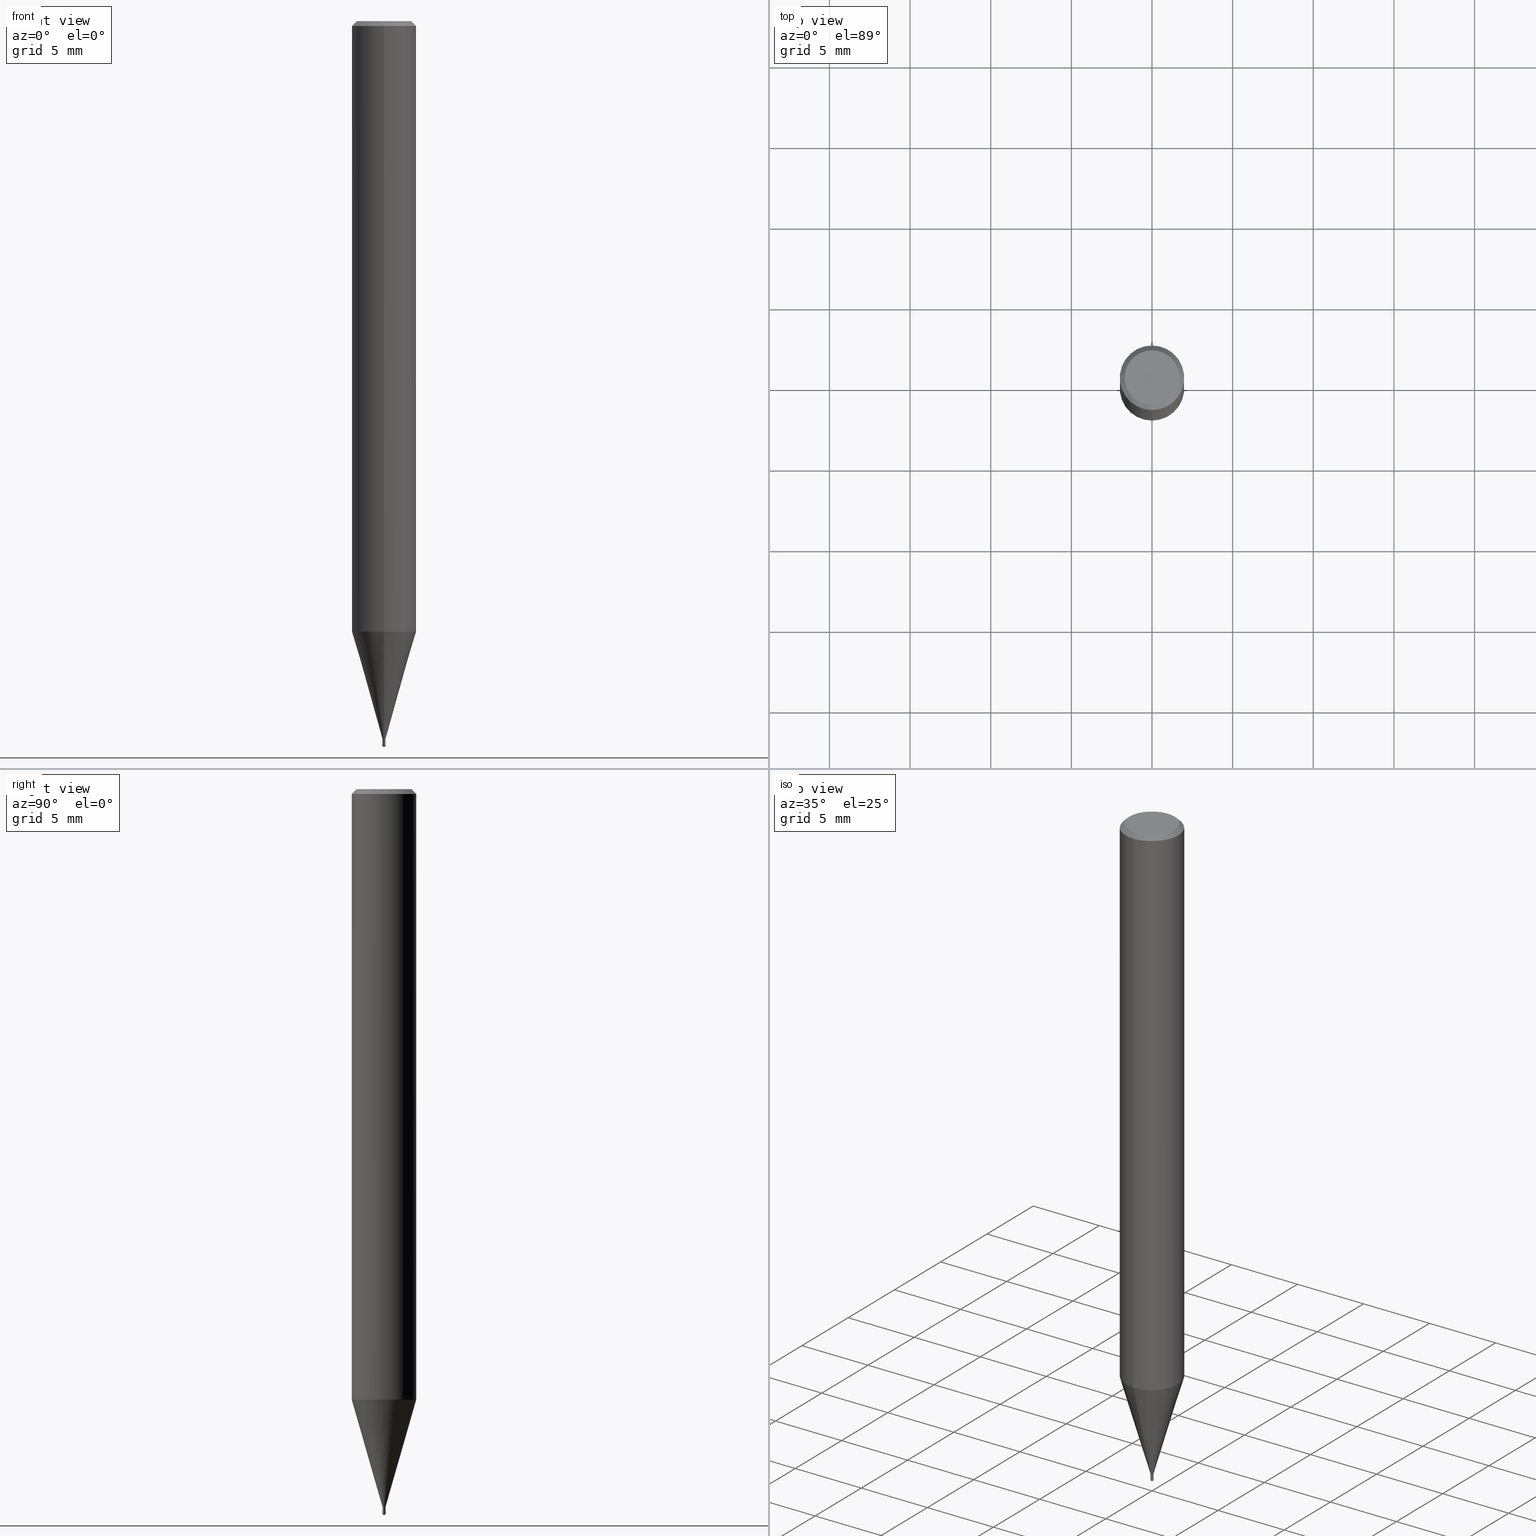
[diagram: canonical four-view strip — front | top / right | iso, engineering-drawing reading convention]
A machine part, canonical four-view strip (front | top / right | iso — engineering-drawing reading convention). The complete STEP part file that produces these views, byte-faithful:
ISO-10303-21;
HEADER;
FILE_DESCRIPTION(('no description'),'unknown implementation level');
FILE_NAME('HSLB2002-005-Huellk.stp','  ',('CIMSOURCE GmbH'),('CADClick - KiM GmbH - www.kimweb.de'),'unknown preprocess','ACIS','unknown authorization');
FILE_SCHEMA(('automotive_design'));
ENDSEC;
DATA;
#1=MECHANICAL_DESIGN_GEOMETRIC_PRESENTATION_REPRESENTATION(' ',(#14,#15,#16,#17,#18,#19,#20,#21,#22,#23,#24,#25,#26,#27,#28,#29,#30,#31,#32,#33,#34,#35,#36,#37,#38,#39,#40,#41,#42,#43,#44,#45,#46,#47,#48,#49,#50,#51,#52,#53,#54,#55,#56,#57,#58,#59,#60,#61,#62,#63,#64,#65,#66,#67,#68,#69,#70,#71,#72,#73,#74),#10);
#2=PRODUCT_DEFINITION_CONTEXT('',#75,'design');
#3=APPLICATION_PROTOCOL_DEFINITION('INTERNATIONAL STANDARD','automotive_design',1994,#75);
#4=PRODUCT_CATEGORY_RELATIONSHIP('NONE','NONE',#76,#77);
#5=SHAPE_DEFINITION_REPRESENTATION(#78,#79);
#6=PRODUCT_DEFINITION_CONTEXT('',#80,'design');
#7=APPLICATION_PROTOCOL_DEFINITION('INTERNATIONAL STANDARD','automotive_design',1994,#80);
#8=PRODUCT_CATEGORY_RELATIONSHIP('NONE','NONE',#81,#82);
#9=SHAPE_DEFINITION_REPRESENTATION(#83,#84);
#10= (GEOMETRIC_REPRESENTATION_CONTEXT(3)GLOBAL_UNCERTAINTY_ASSIGNED_CONTEXT((#87))GLOBAL_UNIT_ASSIGNED_CONTEXT((#89,#90,#91))REPRESENTATION_CONTEXT('NONE','WORKSPACE'));
#14=STYLED_ITEM('',(#93),#94);
#15=STYLED_ITEM('',(#95),#96);
#16=STYLED_ITEM('',(#97),#98);
#17=STYLED_ITEM('',(#99),#100);
#18=STYLED_ITEM('',(#101),#102);
#19=STYLED_ITEM('',(#103),#104);
#20=STYLED_ITEM('',(#105),#106);
#21=STYLED_ITEM('',(#107),#108);
#22=STYLED_ITEM('',(#109),#110);
#23=STYLED_ITEM('',(#111),#112);
#24=STYLED_ITEM('',(#113),#114);
#25=STYLED_ITEM('',(#115),#116);
#26=STYLED_ITEM('',(#117),#118);
#27=STYLED_ITEM('',(#119),#120);
#28=STYLED_ITEM('',(#121),#122);
#29=STYLED_ITEM('',(#123),#124);
#30=STYLED_ITEM('',(#125),#126);
#31=STYLED_ITEM('',(#127),#128);
#32=STYLED_ITEM('',(#129),#130);
#33=STYLED_ITEM('',(#131),#132);
#34=STYLED_ITEM('',(#133),#134);
#35=STYLED_ITEM('',(#135),#136);
#36=STYLED_ITEM('',(#137),#138);
#37=STYLED_ITEM('',(#139),#140);
#38=STYLED_ITEM('',(#141),#142);
#39=STYLED_ITEM('',(#143),#144);
#40=STYLED_ITEM('',(#145),#146);
#41=STYLED_ITEM('',(#147),#148);
#42=STYLED_ITEM('',(#149),#150);
#43=STYLED_ITEM('',(#151),#152);
#44=STYLED_ITEM('',(#153),#154);
#45=STYLED_ITEM('',(#155),#156);
#46=STYLED_ITEM('',(#157),#158);
#47=STYLED_ITEM('',(#159),#160);
#48=STYLED_ITEM('',(#161),#162);
#49=STYLED_ITEM('',(#163),#164);
#50=STYLED_ITEM('',(#165),#166);
#51=STYLED_ITEM('',(#167),#168);
#52=STYLED_ITEM('',(#169),#170);
#53=STYLED_ITEM('',(#171),#172);
#54=STYLED_ITEM('',(#173),#174);
#55=STYLED_ITEM('',(#175),#176);
#56=STYLED_ITEM('',(#177),#178);
#57=STYLED_ITEM('',(#179),#180);
#58=STYLED_ITEM('',(#181),#182);
#59=STYLED_ITEM('',(#183),#184);
#60=STYLED_ITEM('',(#185),#186);
#61=STYLED_ITEM('',(#187),#188);
#62=STYLED_ITEM('',(#189),#190);
#63=STYLED_ITEM('',(#191),#192);
#64=STYLED_ITEM('',(#193),#194);
#65=STYLED_ITEM('',(#195),#196);
#66=STYLED_ITEM('',(#197),#198);
#67=STYLED_ITEM('',(#199),#200);
#68=STYLED_ITEM('',(#201),#202);
#69=STYLED_ITEM('',(#203),#204);
#70=STYLED_ITEM('',(#205),#206);
#71=STYLED_ITEM('',(#207),#208);
#72=STYLED_ITEM('',(#209),#210);
#73=STYLED_ITEM('',(#211),#212);
#74=STYLED_ITEM('',(#213),#214);
#75=APPLICATION_CONTEXT(' ');
#76=PRODUCT_CATEGORY('part','NONE');
#77=PRODUCT_RELATED_PRODUCT_CATEGORY('detail',' ',(#215));
#78=PRODUCT_DEFINITION_SHAPE('NONE','NONE',#216);
#79=ADVANCED_BREP_SHAPE_REPRESENTATION('1',(#158,#217),#10);
#80=APPLICATION_CONTEXT(' ');
#81=PRODUCT_CATEGORY('part','NONE');
#82=PRODUCT_RELATED_PRODUCT_CATEGORY('detail',' ',(#218));
#83=PRODUCT_DEFINITION_SHAPE('NONE','NONE',#219);
#84=ADVANCED_BREP_SHAPE_REPRESENTATION('2',(#188,#220),#10);
#87=UNCERTAINTY_MEASURE_WITH_UNIT(LENGTH_MEASURE(1.0E-006),#89,'','');
#89= (CONVERSION_BASED_UNIT('MILLIMETRE',#223)LENGTH_UNIT()NAMED_UNIT(#226));
#90= (NAMED_UNIT(#228)PLANE_ANGLE_UNIT()SI_UNIT($,.RADIAN.));
#91= (NAMED_UNIT(#228)SOLID_ANGLE_UNIT()SI_UNIT($,.STERADIAN.));
#93=PRESENTATION_STYLE_ASSIGNMENT((#234));
#94=EDGE_CURVE('',#194,#124,#235,.T.);
#95=PRESENTATION_STYLE_ASSIGNMENT((#236));
#96=EDGE_CURVE('',#112,#194,#237,.T.);
#97=PRESENTATION_STYLE_ASSIGNMENT((#238));
#98=ADVANCED_FACE('',(#239),#240,.T.);
#99=PRESENTATION_STYLE_ASSIGNMENT((#241));
#100=ADVANCED_FACE('',(#242),#243,.T.);
#101=PRESENTATION_STYLE_ASSIGNMENT((#244));
#102=EDGE_CURVE('',#118,#160,#245,.T.);
#103=PRESENTATION_STYLE_ASSIGNMENT((#246));
#104=EDGE_CURVE('',#106,#142,#247,.T.);
#105=PRESENTATION_STYLE_ASSIGNMENT((#248));
#106=VERTEX_POINT('',#249);
#107=PRESENTATION_STYLE_ASSIGNMENT((#250));
#108=EDGE_CURVE('',#124,#166,#251,.T.);
#109=PRESENTATION_STYLE_ASSIGNMENT((#252));
#110=ADVANCED_FACE('',(#253),#254,.T.);
#111=PRESENTATION_STYLE_ASSIGNMENT((#255));
#112=VERTEX_POINT('',#256);
#113=PRESENTATION_STYLE_ASSIGNMENT((#257));
#114=VERTEX_POINT('',#258);
#115=PRESENTATION_STYLE_ASSIGNMENT((#259));
#116=EDGE_CURVE('',#160,#118,#260,.T.);
#117=PRESENTATION_STYLE_ASSIGNMENT((#261));
#118=VERTEX_POINT('',#262);
#119=PRESENTATION_STYLE_ASSIGNMENT((#263));
#120=ADVANCED_FACE('',(#264),#265,.T.);
#121=PRESENTATION_STYLE_ASSIGNMENT((#266));
#122=EDGE_CURVE('',#106,#160,#267,.T.);
#123=PRESENTATION_STYLE_ASSIGNMENT((#268));
#124=VERTEX_POINT('',#269);
#125=PRESENTATION_STYLE_ASSIGNMENT((#270));
#126=ADVANCED_FACE('',(#271),#272,.T.);
#127=PRESENTATION_STYLE_ASSIGNMENT((#273));
#128=EDGE_CURVE('',#118,#160,#274,.T.);
#129=PRESENTATION_STYLE_ASSIGNMENT((#275));
#130=ADVANCED_FACE('',(#276),#277,.T.);
#131=PRESENTATION_STYLE_ASSIGNMENT((#278));
#132=EDGE_CURVE('',#152,#112,#279,.T.);
#133=PRESENTATION_STYLE_ASSIGNMENT((#280));
#134=EDGE_CURVE('',#166,#214,#281,.T.);
#135=PRESENTATION_STYLE_ASSIGNMENT((#282));
#136=VERTEX_POINT('',#283);
#137=PRESENTATION_STYLE_ASSIGNMENT((#284));
#138=ADVANCED_FACE('',(#285),#286,.T.);
#139=PRESENTATION_STYLE_ASSIGNMENT((#287));
#140=ADVANCED_FACE('',(#288),#289,.T.);
#141=PRESENTATION_STYLE_ASSIGNMENT((#290));
#142=VERTEX_POINT('',#291);
#143=PRESENTATION_STYLE_ASSIGNMENT((#292));
#144=VERTEX_POINT('',#293);
#145=PRESENTATION_STYLE_ASSIGNMENT((#294));
#146=EDGE_CURVE('',#118,#142,#295,.T.);
#147=PRESENTATION_STYLE_ASSIGNMENT((#296));
#148=EDGE_CURVE('',#204,#168,#297,.T.);
#149=PRESENTATION_STYLE_ASSIGNMENT((#298));
#150=ADVANCED_FACE('',(#299),#300,.T.);
#151=PRESENTATION_STYLE_ASSIGNMENT((#301));
#152=VERTEX_POINT('',#302);
#153=PRESENTATION_STYLE_ASSIGNMENT((#303));
#154=EDGE_CURVE('',#136,#168,#304,.T.);
#155=PRESENTATION_STYLE_ASSIGNMENT((#305));
#156=VERTEX_POINT('',#306);
#157=PRESENTATION_STYLE_ASSIGNMENT((#307));
#158=MANIFOLD_SOLID_BREP('1',#308);
#159=PRESENTATION_STYLE_ASSIGNMENT((#309));
#160=VERTEX_POINT('',#310);
#161=PRESENTATION_STYLE_ASSIGNMENT((#311));
#162=EDGE_CURVE('',#112,#152,#312,.T.);
#163=PRESENTATION_STYLE_ASSIGNMENT((#313));
#164=EDGE_CURVE('',#168,#144,#314,.T.);
#165=PRESENTATION_STYLE_ASSIGNMENT((#315));
#166=VERTEX_POINT('',#316);
#167=PRESENTATION_STYLE_ASSIGNMENT((#317));
#168=VERTEX_POINT('',#318);
#169=PRESENTATION_STYLE_ASSIGNMENT((#319));
#170=EDGE_CURVE('',#136,#114,#320,.T.);
#171=PRESENTATION_STYLE_ASSIGNMENT((#321));
#172=EDGE_CURVE('',#144,#156,#322,.T.);
#173=PRESENTATION_STYLE_ASSIGNMENT((#323));
#174=EDGE_CURVE('',#194,#214,#324,.T.);
#175=PRESENTATION_STYLE_ASSIGNMENT((#325));
#176=ADVANCED_FACE('',(#326),#327,.T.);
#177=PRESENTATION_STYLE_ASSIGNMENT((#328));
#178=ADVANCED_FACE('',(#329),#330,.T.);
#179=PRESENTATION_STYLE_ASSIGNMENT((#331));
#180=ADVANCED_FACE('',(#332),#333,.T.);
#181=PRESENTATION_STYLE_ASSIGNMENT((#334));
#182=EDGE_CURVE('',#156,#144,#335,.T.);
#183=PRESENTATION_STYLE_ASSIGNMENT((#336));
#184=ADVANCED_FACE('',(#337),#338,.T.);
#185=PRESENTATION_STYLE_ASSIGNMENT((#339));
#186=EDGE_CURVE('',#142,#106,#340,.T.);
#187=PRESENTATION_STYLE_ASSIGNMENT((#341));
#188=MANIFOLD_SOLID_BREP('2',#342);
#189=PRESENTATION_STYLE_ASSIGNMENT((#343));
#190=EDGE_CURVE('',#214,#152,#344,.T.);
#191=PRESENTATION_STYLE_ASSIGNMENT((#345));
#192=ADVANCED_FACE('',(#346),#347,.T.);
#193=PRESENTATION_STYLE_ASSIGNMENT((#348));
#194=VERTEX_POINT('',#349);
#195=PRESENTATION_STYLE_ASSIGNMENT((#350));
#196=EDGE_CURVE('',#114,#204,#351,.T.);
#197=PRESENTATION_STYLE_ASSIGNMENT((#352));
#198=EDGE_CURVE('',#204,#114,#353,.T.);
#199=PRESENTATION_STYLE_ASSIGNMENT((#354));
#200=ADVANCED_FACE('',(#355),#356,.T.);
#201=PRESENTATION_STYLE_ASSIGNMENT((#357));
#202=EDGE_CURVE('',#168,#136,#358,.T.);
#203=PRESENTATION_STYLE_ASSIGNMENT((#359));
#204=VERTEX_POINT('',#360);
#205=PRESENTATION_STYLE_ASSIGNMENT((#361));
#206=EDGE_CURVE('',#156,#136,#362,.T.);
#207=PRESENTATION_STYLE_ASSIGNMENT((#363));
#208=ADVANCED_FACE('',(#364,#365),#366,.T.);
#209=PRESENTATION_STYLE_ASSIGNMENT((#367));
#210=EDGE_CURVE('',#166,#124,#368,.T.);
#211=PRESENTATION_STYLE_ASSIGNMENT((#369));
#212=EDGE_CURVE('',#214,#194,#370,.T.);
#213=PRESENTATION_STYLE_ASSIGNMENT((#371));
#214=VERTEX_POINT('',#372);
#215=PRODUCT('1','1','PART-1-DESC',(#373));
#216=PRODUCT_DEFINITION('NONE','NONE',#374,#2);
#217=AXIS2_PLACEMENT_3D('',#375,#376,#377);
#218=PRODUCT('2','2','PART-2-DESC',(#378));
#219=PRODUCT_DEFINITION('NONE','NONE',#379,#6);
#220=AXIS2_PLACEMENT_3D('',#380,#381,#382);
#223=LENGTH_MEASURE_WITH_UNIT(LENGTH_MEASURE(1.0),#383);
#226=DIMENSIONAL_EXPONENTS(1.0,0.0,0.0,0.0,0.0,0.0,0.0);
#228=DIMENSIONAL_EXPONENTS(0.0,0.0,0.0,0.0,0.0,0.0,0.0);
#234=CURVE_STYLE('',#384,POSITIVE_LENGTH_MEASURE(1.0E-006),#385);
#235=LINE('',#386,#387);
#236=CURVE_STYLE('',#388,POSITIVE_LENGTH_MEASURE(1.0E-006),#389);
#237=LINE('',#390,#391);
#238=SURFACE_STYLE_USAGE(.BOTH.,#392);
#239=FACE_OUTER_BOUND('',#393,.T.);
#240=CONICAL_SURFACE('',#394,0.09995,0.00166666512345941);
#241=SURFACE_STYLE_USAGE(.BOTH.,#395);
#242=FACE_OUTER_BOUND('',#396,.T.);
#243=PLANE('',#397);
#244=CURVE_STYLE('',#398,POSITIVE_LENGTH_MEASURE(1.0E-006),#399);
#245=CIRCLE('',#400,0.1);
#246=CURVE_STYLE('',#401,POSITIVE_LENGTH_MEASURE(1.0E-006),#402);
#247=CIRCLE('',#403,0.0999);
#248=POINT_STYLE(' ',#404,POSITIVE_LENGTH_MEASURE(1.0E-006),#405);
#249=CARTESIAN_POINT('',(0.0,0.0999,-44.84));
#250=CURVE_STYLE('',#406,POSITIVE_LENGTH_MEASURE(1.0E-006),#407);
#251=CIRCLE('',#408,1.99995);
#252=SURFACE_STYLE_USAGE(.BOTH.,#409);
#253=FACE_OUTER_BOUND('',#410,.T.);
#254=CYLINDRICAL_SURFACE('',#411,0.09495);
#255=POINT_STYLE(' ',#412,POSITIVE_LENGTH_MEASURE(1.0E-006),#413);
#256=CARTESIAN_POINT('',(1.16276373295435E-017,-0.09495,-44.84));
#257=POINT_STYLE(' ',#414,POSITIVE_LENGTH_MEASURE(1.0E-006),#415);
#258=CARTESIAN_POINT('',(0.0,2.0,-37.856));
#259=CURVE_STYLE('',#416,POSITIVE_LENGTH_MEASURE(1.0E-006),#417);
#260=CIRCLE('',#418,0.1);
#261=POINT_STYLE(' ',#419,POSITIVE_LENGTH_MEASURE(1.0E-006),#420);
#262=CARTESIAN_POINT('',(1.22460635382238E-017,-0.1,-44.9));
#263=SURFACE_STYLE_USAGE(.BOTH.,#421);
#264=FACE_OUTER_BOUND('',#422,.T.);
#265=SPHERICAL_SURFACE('',#423,0.1);
#266=CURVE_STYLE('',#424,POSITIVE_LENGTH_MEASURE(1.0E-006),#425);
#267=LINE('',#426,#427);
#268=POINT_STYLE(' ',#428,POSITIVE_LENGTH_MEASURE(1.0E-006),#429);
#269=CARTESIAN_POINT('',(2.44915147732706E-016,-1.99995,-37.856));
#270=SURFACE_STYLE_USAGE(.BOTH.,#430);
#271=FACE_OUTER_BOUND('',#431,.T.);
#272=PLANE('',#432);
#273=CURVE_STYLE('',#433,POSITIVE_LENGTH_MEASURE(1.0E-006),#434);
#274=CIRCLE('',#435,0.1);
#275=SURFACE_STYLE_USAGE(.BOTH.,#436);
#276=FACE_OUTER_BOUND('',#437,.T.);
#277=CYLINDRICAL_SURFACE('',#438,0.09495);
#278=CURVE_STYLE('',#439,POSITIVE_LENGTH_MEASURE(1.0E-006),#440);
#279=CIRCLE('',#441,0.09495);
#280=CURVE_STYLE('',#442,POSITIVE_LENGTH_MEASURE(1.0E-006),#443);
#281=LINE('',#444,#445);
#282=POINT_STYLE(' ',#446,POSITIVE_LENGTH_MEASURE(1.0E-006),#447);
#283=CARTESIAN_POINT('',(0.0,2.0,-0.299999999999997));
#284=SURFACE_STYLE_USAGE(.BOTH.,#448);
#285=FACE_OUTER_BOUND('',#449,.T.);
#286=CONICAL_SURFACE('',#450,0.09995,0.00166666512345941);
#287=SURFACE_STYLE_USAGE(.BOTH.,#451);
#288=FACE_OUTER_BOUND('',#452,.T.);
#289=CONICAL_SURFACE('',#453,1.04745,0.279233718115795);
#290=POINT_STYLE(' ',#454,POSITIVE_LENGTH_MEASURE(1.0E-006),#455);
#291=CARTESIAN_POINT('',(1.22338174746855E-017,-0.0999,-44.84));
#292=POINT_STYLE(' ',#456,POSITIVE_LENGTH_MEASURE(1.0E-006),#457);
#293=CARTESIAN_POINT('',(2.08183080149804E-016,-1.7,0.0));
#294=CURVE_STYLE('',#458,POSITIVE_LENGTH_MEASURE(1.0E-006),#459);
#295=LINE('',#460,#461);
#296=CURVE_STYLE('',#462,POSITIVE_LENGTH_MEASURE(1.0E-006),#463);
#297=LINE('',#464,#465);
#298=SURFACE_STYLE_USAGE(.BOTH.,#466);
#299=FACE_OUTER_BOUND('',#467,.T.);
#300=CYLINDRICAL_SURFACE('',#468,2.0);
#301=POINT_STYLE(' ',#469,POSITIVE_LENGTH_MEASURE(1.0E-006),#470);
#302=CARTESIAN_POINT('',(0.0,0.09495,-44.84));
#303=CURVE_STYLE('',#471,POSITIVE_LENGTH_MEASURE(1.0E-006),#472);
#304=CIRCLE('',#473,2.0);
#305=POINT_STYLE(' ',#474,POSITIVE_LENGTH_MEASURE(1.0E-006),#475);
#306=CARTESIAN_POINT('',(0.0,1.7,0.0));
#307=SURFACE_STYLE_USAGE(.BOTH.,#476);
#308=CLOSED_SHELL('',(#110,#140,#180,#200,#208,#126,#176,#150,#178,#130,#192));
#309=POINT_STYLE(' ',#477,POSITIVE_LENGTH_MEASURE(1.0E-006),#478);
#310=CARTESIAN_POINT('',(0.0,0.1,-44.9));
#311=CURVE_STYLE('',#479,POSITIVE_LENGTH_MEASURE(1.0E-006),#480);
#312=CIRCLE('',#481,0.09495);
#313=CURVE_STYLE('',#482,POSITIVE_LENGTH_MEASURE(1.0E-006),#483);
#314=LINE('',#484,#485);
#315=POINT_STYLE(' ',#486,POSITIVE_LENGTH_MEASURE(1.0E-006),#487);
#316=CARTESIAN_POINT('',(0.0,1.99995,-37.856));
#317=POINT_STYLE(' ',#488,POSITIVE_LENGTH_MEASURE(1.0E-006),#489);
#318=CARTESIAN_POINT('',(2.44921270764475E-016,-2.0,-0.299999999999997));
#319=CURVE_STYLE('',#490,POSITIVE_LENGTH_MEASURE(1.0E-006),#491);
#320=LINE('',#492,#493);
#321=CURVE_STYLE('',#494,POSITIVE_LENGTH_MEASURE(1.0E-006),#495);
#322=CIRCLE('',#496,1.7);
#323=CURVE_STYLE('',#497,POSITIVE_LENGTH_MEASURE(1.0E-006),#498);
#324=CIRCLE('',#499,0.09495);
#325=SURFACE_STYLE_USAGE(.BOTH.,#500);
#326=FACE_OUTER_BOUND('',#501,.T.);
#327=CONICAL_SURFACE('',#502,1.85,0.785398163397453);
#328=SURFACE_STYLE_USAGE(.BOTH.,#503);
#329=FACE_OUTER_BOUND('',#504,.T.);
#330=CONICAL_SURFACE('',#505,1.04745,0.279233718115795);
#331=SURFACE_STYLE_USAGE(.BOTH.,#506);
#332=FACE_OUTER_BOUND('',#507,.T.);
#333=CYLINDRICAL_SURFACE('',#508,2.0);
#334=CURVE_STYLE('',#509,POSITIVE_LENGTH_MEASURE(1.0E-006),#510);
#335=CIRCLE('',#511,1.7);
#336=SURFACE_STYLE_USAGE(.BOTH.,#512);
#337=FACE_OUTER_BOUND('',#513,.T.);
#338=SPHERICAL_SURFACE('',#514,0.1);
#339=CURVE_STYLE('',#515,POSITIVE_LENGTH_MEASURE(1.0E-006),#516);
#340=CIRCLE('',#517,0.0999);
#341=SURFACE_STYLE_USAGE(.BOTH.,#518);
#342=CLOSED_SHELL('',(#120,#98,#100,#138,#184));
#343=CURVE_STYLE('',#519,POSITIVE_LENGTH_MEASURE(1.0E-006),#520);
#344=LINE('',#521,#522);
#345=SURFACE_STYLE_USAGE(.BOTH.,#523);
#346=FACE_OUTER_BOUND('',#524,.T.);
#347=PLANE('',#525);
#348=POINT_STYLE(' ',#526,POSITIVE_LENGTH_MEASURE(1.0E-006),#527);
#349=CARTESIAN_POINT('',(1.16276373295435E-017,-0.09495,-44.5));
#350=CURVE_STYLE('',#528,POSITIVE_LENGTH_MEASURE(1.0E-006),#529);
#351=CIRCLE('',#530,2.0);
#352=CURVE_STYLE('',#531,POSITIVE_LENGTH_MEASURE(1.0E-006),#532);
#353=CIRCLE('',#533,2.0);
#354=SURFACE_STYLE_USAGE(.BOTH.,#534);
#355=FACE_OUTER_BOUND('',#535,.T.);
#356=CONICAL_SURFACE('',#536,1.85,0.785398163397453);
#357=CURVE_STYLE('',#537,POSITIVE_LENGTH_MEASURE(1.0E-006),#538);
#358=CIRCLE('',#539,2.0);
#359=POINT_STYLE(' ',#540,POSITIVE_LENGTH_MEASURE(1.0E-006),#541);
#360=CARTESIAN_POINT('',(2.44921270764475E-016,-2.0,-37.856));
#361=CURVE_STYLE('',#542,POSITIVE_LENGTH_MEASURE(1.0E-006),#543);
#362=LINE('',#544,#545);
#363=SURFACE_STYLE_USAGE(.BOTH.,#546);
#364=FACE_OUTER_BOUND('',#547,.T.);
#365=FACE_BOUND('',#548,.T.);
#366=PLANE('',#549);
#367=CURVE_STYLE('',#550,POSITIVE_LENGTH_MEASURE(1.0E-006),#551);
#368=CIRCLE('',#552,1.99995);
#369=CURVE_STYLE('',#553,POSITIVE_LENGTH_MEASURE(1.0E-006),#554);
#370=CIRCLE('',#555,0.09495);
#371=POINT_STYLE(' ',#556,POSITIVE_LENGTH_MEASURE(1.0E-006),#557);
#372=CARTESIAN_POINT('',(0.0,0.09495,-44.5));
#373=PRODUCT_CONTEXT('',#75,'mechanical');
#374=PRODUCT_DEFINITION_FORMATION_WITH_SPECIFIED_SOURCE(' ','NONE',#215,.NOT_KNOWN.);
#375=CARTESIAN_POINT('',(0.0,0.0,0.0));
#376=DIRECTION('',(0.0,0.0,1.0));
#377=DIRECTION('',(1.0,0.0,0.0));
#378=PRODUCT_CONTEXT('',#80,'mechanical');
#379=PRODUCT_DEFINITION_FORMATION_WITH_SPECIFIED_SOURCE(' ','NONE',#218,.NOT_KNOWN.);
#380=CARTESIAN_POINT('',(0.0,0.0,0.0));
#381=DIRECTION('',(0.0,0.0,1.0));
#382=DIRECTION('',(1.0,0.0,0.0));
#383= (NAMED_UNIT(#226)LENGTH_UNIT()SI_UNIT(.MILLI.,.METRE.));
#384=DRAUGHTING_PRE_DEFINED_CURVE_FONT('continuous');
#385=COLOUR_RGB('',0.498039215803146,0.498039215803146,0.498039215803146);
#386=CARTESIAN_POINT('',(1.28271392531125E-016,-1.04745,-41.178));
#387=VECTOR('',#559,1.0);
#388=DRAUGHTING_PRE_DEFINED_CURVE_FONT('continuous');
#389=COLOUR_RGB('',0.498039215803146,0.498039215803146,0.498039215803146);
#390=CARTESIAN_POINT('',(1.16276373295435E-017,-0.09495,-44.67));
#391=VECTOR('',#560,1.0);
#392=SURFACE_SIDE_STYLE('',(#561));
#393=EDGE_LOOP('',(#562,#563,#564,#565));
#394=AXIS2_PLACEMENT_3D('',#566,#567,#568);
#395=SURFACE_SIDE_STYLE('',(#569));
#396=EDGE_LOOP('',(#570,#571));
#397=AXIS2_PLACEMENT_3D('',#572,#573,#574);
#398=DRAUGHTING_PRE_DEFINED_CURVE_FONT('continuous');
#399=COLOUR_RGB('',0.800000011920929,0.800000011920929,0.800000011920929);
#400=AXIS2_PLACEMENT_3D('',#575,#576,#577);
#401=DRAUGHTING_PRE_DEFINED_CURVE_FONT('continuous');
#402=COLOUR_RGB('',0.800000011920929,0.800000011920929,0.800000011920929);
#403=AXIS2_PLACEMENT_3D('',#578,#579,#580);
#404=PRE_DEFINED_MARKER('');
#405=COLOUR_RGB('',0.800000011920929,0.800000011920929,0.800000011920929);
#406=DRAUGHTING_PRE_DEFINED_CURVE_FONT('continuous');
#407=COLOUR_RGB('',0.498039215803146,0.498039215803146,0.498039215803146);
#408=AXIS2_PLACEMENT_3D('',#581,#582,#583);
#409=SURFACE_SIDE_STYLE('',(#584));
#410=EDGE_LOOP('',(#585,#586,#587,#588));
#411=AXIS2_PLACEMENT_3D('',#589,#590,#591);
#412=PRE_DEFINED_MARKER('');
#413=COLOUR_RGB('',0.498039215803146,0.498039215803146,0.498039215803146);
#414=PRE_DEFINED_MARKER('');
#415=COLOUR_RGB('',0.498039215803146,0.498039215803146,0.498039215803146);
#416=DRAUGHTING_PRE_DEFINED_CURVE_FONT('continuous');
#417=COLOUR_RGB('',0.800000011920929,0.800000011920929,0.800000011920929);
#418=AXIS2_PLACEMENT_3D('',#592,#593,#594);
#419=PRE_DEFINED_MARKER('');
#420=COLOUR_RGB('',0.800000011920929,0.800000011920929,0.800000011920929);
#421=SURFACE_SIDE_STYLE('',(#595));
#422=EDGE_LOOP('',(#596,#597));
#423=AXIS2_PLACEMENT_3D('',#598,#599,#600);
#424=DRAUGHTING_PRE_DEFINED_CURVE_FONT('continuous');
#425=COLOUR_RGB('',0.800000011920929,0.800000011920929,0.800000011920929);
#426=CARTESIAN_POINT('',(-1.22399405064547E-017,0.09995,-44.87));
#427=VECTOR('',#601,1.0);
#428=PRE_DEFINED_MARKER('');
#429=COLOUR_RGB('',0.498039215803146,0.498039215803146,0.498039215803146);
#430=SURFACE_SIDE_STYLE('',(#602));
#431=EDGE_LOOP('',(#603,#604));
#432=AXIS2_PLACEMENT_3D('',#605,#606,#607);
#433=DRAUGHTING_PRE_DEFINED_CURVE_FONT('continuous');
#434=COLOUR_RGB('',0.800000011920929,0.800000011920929,0.800000011920929);
#435=AXIS2_PLACEMENT_3D('',#608,#609,#610);
#436=SURFACE_SIDE_STYLE('',(#611));
#437=EDGE_LOOP('',(#612,#613,#614,#615));
#438=AXIS2_PLACEMENT_3D('',#616,#617,#618);
#439=DRAUGHTING_PRE_DEFINED_CURVE_FONT('continuous');
#440=COLOUR_RGB('',0.498039215803146,0.498039215803146,0.498039215803146);
#441=AXIS2_PLACEMENT_3D('',#619,#620,#621);
#442=DRAUGHTING_PRE_DEFINED_CURVE_FONT('continuous');
#443=COLOUR_RGB('',0.498039215803146,0.498039215803146,0.498039215803146);
#444=CARTESIAN_POINT('',(-1.28271392531125E-016,1.04745,-41.178));
#445=VECTOR('',#622,1.0);
#446=PRE_DEFINED_MARKER('');
#447=COLOUR_RGB('',0.498039215803146,0.498039215803146,0.498039215803146);
#448=SURFACE_SIDE_STYLE('',(#623));
#449=EDGE_LOOP('',(#624,#625,#626,#627));
#450=AXIS2_PLACEMENT_3D('',#628,#629,#630);
#451=SURFACE_SIDE_STYLE('',(#631));
#452=EDGE_LOOP('',(#632,#633,#634,#635));
#453=AXIS2_PLACEMENT_3D('',#636,#637,#638);
#454=PRE_DEFINED_MARKER('');
#455=COLOUR_RGB('',0.800000011920929,0.800000011920929,0.800000011920929);
#456=PRE_DEFINED_MARKER('');
#457=COLOUR_RGB('',0.498039215803146,0.498039215803146,0.498039215803146);
#458=DRAUGHTING_PRE_DEFINED_CURVE_FONT('continuous');
#459=COLOUR_RGB('',0.800000011920929,0.800000011920929,0.800000011920929);
#460=CARTESIAN_POINT('',(1.22399405064547E-017,-0.09995,-44.87));
#461=VECTOR('',#639,1.0);
#462=DRAUGHTING_PRE_DEFINED_CURVE_FONT('continuous');
#463=COLOUR_RGB('',0.498039215803146,0.498039215803146,0.498039215803146);
#464=CARTESIAN_POINT('',(2.44921270764475E-016,-2.0,-19.078));
#465=VECTOR('',#640,1.0);
#466=SURFACE_SIDE_STYLE('',(#641));
#467=EDGE_LOOP('',(#642,#643,#644,#645));
#468=AXIS2_PLACEMENT_3D('',#646,#647,#648);
#469=PRE_DEFINED_MARKER('');
#470=COLOUR_RGB('',0.498039215803146,0.498039215803146,0.498039215803146);
#471=DRAUGHTING_PRE_DEFINED_CURVE_FONT('continuous');
#472=COLOUR_RGB('',0.498039215803146,0.498039215803146,0.498039215803146);
#473=AXIS2_PLACEMENT_3D('',#649,#650,#651);
#474=PRE_DEFINED_MARKER('');
#475=COLOUR_RGB('',0.498039215803146,0.498039215803146,0.498039215803146);
#476=SURFACE_SIDE_STYLE('',(#652));
#477=PRE_DEFINED_MARKER('');
#478=COLOUR_RGB('',0.800000011920929,0.800000011920929,0.800000011920929);
#479=DRAUGHTING_PRE_DEFINED_CURVE_FONT('continuous');
#480=COLOUR_RGB('',0.498039215803146,0.498039215803146,0.498039215803146);
#481=AXIS2_PLACEMENT_3D('',#653,#654,#655);
#482=DRAUGHTING_PRE_DEFINED_CURVE_FONT('continuous');
#483=COLOUR_RGB('',0.498039215803146,0.498039215803146,0.498039215803146);
#484=CARTESIAN_POINT('',(2.2655217545714E-016,-1.85,-0.149999999999999));
#485=VECTOR('',#656,1.0);
#486=PRE_DEFINED_MARKER('');
#487=COLOUR_RGB('',0.498039215803146,0.498039215803146,0.498039215803146);
#488=PRE_DEFINED_MARKER('');
#489=COLOUR_RGB('',0.498039215803146,0.498039215803146,0.498039215803146);
#490=DRAUGHTING_PRE_DEFINED_CURVE_FONT('continuous');
#491=COLOUR_RGB('',0.498039215803146,0.498039215803146,0.498039215803146);
#492=CARTESIAN_POINT('',(-2.44921270764475E-016,2.0,-19.078));
#493=VECTOR('',#657,1.0);
#494=DRAUGHTING_PRE_DEFINED_CURVE_FONT('continuous');
#495=COLOUR_RGB('',0.498039215803146,0.498039215803146,0.498039215803146);
#496=AXIS2_PLACEMENT_3D('',#658,#659,#660);
#497=DRAUGHTING_PRE_DEFINED_CURVE_FONT('continuous');
#498=COLOUR_RGB('',0.498039215803146,0.498039215803146,0.498039215803146);
#499=AXIS2_PLACEMENT_3D('',#661,#662,#663);
#500=SURFACE_SIDE_STYLE('',(#664));
#501=EDGE_LOOP('',(#665,#666,#667,#668));
#502=AXIS2_PLACEMENT_3D('',#669,#670,#671);
#503=SURFACE_SIDE_STYLE('',(#672));
#504=EDGE_LOOP('',(#673,#674,#675,#676));
#505=AXIS2_PLACEMENT_3D('',#677,#678,#679);
#506=SURFACE_SIDE_STYLE('',(#680));
#507=EDGE_LOOP('',(#681,#682,#683,#684));
#508=AXIS2_PLACEMENT_3D('',#685,#686,#687);
#509=DRAUGHTING_PRE_DEFINED_CURVE_FONT('continuous');
#510=COLOUR_RGB('',0.498039215803146,0.498039215803146,0.498039215803146);
#511=AXIS2_PLACEMENT_3D('',#688,#689,#690);
#512=SURFACE_SIDE_STYLE('',(#691));
#513=EDGE_LOOP('',(#692,#693));
#514=AXIS2_PLACEMENT_3D('',#694,#695,#696);
#515=DRAUGHTING_PRE_DEFINED_CURVE_FONT('continuous');
#516=COLOUR_RGB('',0.800000011920929,0.800000011920929,0.800000011920929);
#517=AXIS2_PLACEMENT_3D('',#697,#698,#699);
#518=SURFACE_SIDE_STYLE('',(#700));
#519=DRAUGHTING_PRE_DEFINED_CURVE_FONT('continuous');
#520=COLOUR_RGB('',0.498039215803146,0.498039215803146,0.498039215803146);
#521=CARTESIAN_POINT('',(-1.16276373295435E-017,0.09495,-44.67));
#522=VECTOR('',#701,1.0);
#523=SURFACE_SIDE_STYLE('',(#702));
#524=EDGE_LOOP('',(#703,#704));
#525=AXIS2_PLACEMENT_3D('',#705,#706,#707);
#526=PRE_DEFINED_MARKER('');
#527=COLOUR_RGB('',0.498039215803146,0.498039215803146,0.498039215803146);
#528=DRAUGHTING_PRE_DEFINED_CURVE_FONT('continuous');
#529=COLOUR_RGB('',0.498039215803146,0.498039215803146,0.498039215803146);
#530=AXIS2_PLACEMENT_3D('',#708,#709,#710);
#531=DRAUGHTING_PRE_DEFINED_CURVE_FONT('continuous');
#532=COLOUR_RGB('',0.498039215803146,0.498039215803146,0.498039215803146);
#533=AXIS2_PLACEMENT_3D('',#711,#712,#713);
#534=SURFACE_SIDE_STYLE('',(#714));
#535=EDGE_LOOP('',(#715,#716,#717,#718));
#536=AXIS2_PLACEMENT_3D('',#719,#720,#721);
#537=DRAUGHTING_PRE_DEFINED_CURVE_FONT('continuous');
#538=COLOUR_RGB('',0.498039215803146,0.498039215803146,0.498039215803146);
#539=AXIS2_PLACEMENT_3D('',#722,#723,#724);
#540=PRE_DEFINED_MARKER('');
#541=COLOUR_RGB('',0.498039215803146,0.498039215803146,0.498039215803146);
#542=DRAUGHTING_PRE_DEFINED_CURVE_FONT('continuous');
#543=COLOUR_RGB('',0.498039215803146,0.498039215803146,0.498039215803146);
#544=CARTESIAN_POINT('',(-2.2655217545714E-016,1.85,-0.149999999999999));
#545=VECTOR('',#725,1.0);
#546=SURFACE_SIDE_STYLE('',(#726));
#547=EDGE_LOOP('',(#727,#728));
#548=EDGE_LOOP('',(#729,#730));
#549=AXIS2_PLACEMENT_3D('',#731,#732,#733);
#550=DRAUGHTING_PRE_DEFINED_CURVE_FONT('continuous');
#551=COLOUR_RGB('',0.498039215803146,0.498039215803146,0.498039215803146);
#552=AXIS2_PLACEMENT_3D('',#734,#735,#736);
#553=DRAUGHTING_PRE_DEFINED_CURVE_FONT('continuous');
#554=COLOUR_RGB('',0.498039215803146,0.498039215803146,0.498039215803146);
#555=AXIS2_PLACEMENT_3D('',#737,#738,#739);
#556=PRE_DEFINED_MARKER('');
#557=COLOUR_RGB('',0.498039215803146,0.498039215803146,0.498039215803146);
#559=DIRECTION('',(3.37524935540219E-017,-0.275619128127744,0.961266922457078));
#560=DIRECTION('',(-0.0,-0.0,1.0));
#561=SURFACE_STYLE_FILL_AREA(#740);
#562=ORIENTED_EDGE('',*,*,#122,.F.);
#563=ORIENTED_EDGE('',*,*,#104,.T.);
#564=ORIENTED_EDGE('',*,*,#146,.F.);
#565=ORIENTED_EDGE('',*,*,#116,.F.);
#566=CARTESIAN_POINT('',(0.0,0.0,-44.87));
#567=DIRECTION('',(0.0,-0.0,-1.0));
#568=DIRECTION('',(0.0,1.0,0.0));
#569=SURFACE_STYLE_FILL_AREA(#741);
#570=ORIENTED_EDGE('',*,*,#104,.F.);
#571=ORIENTED_EDGE('',*,*,#186,.F.);
#572=CARTESIAN_POINT('',(0.0,0.04995,-44.84));
#573=DIRECTION('',(-0.0,0.0,1.0));
#574=DIRECTION('',(0.0,-1.0,0.0));
#575=CARTESIAN_POINT('',(0.0,0.0,-44.9));
#576=DIRECTION('',(1.0,0.0,1.22460635382236E-016));
#577=DIRECTION('',(-1.22460635382236E-016,0.0,1.0));
#578=CARTESIAN_POINT('',(0.0,0.0,-44.84));
#579=DIRECTION('',(0.0,0.0,-1.0));
#580=DIRECTION('',(0.0,1.0,0.0));
#581=CARTESIAN_POINT('',(0.0,0.0,-37.856));
#582=DIRECTION('',(0.0,0.0,-1.0));
#583=DIRECTION('',(0.0,1.0,0.0));
#584=SURFACE_STYLE_FILL_AREA(#742);
#585=ORIENTED_EDGE('',*,*,#190,.F.);
#586=ORIENTED_EDGE('',*,*,#212,.T.);
#587=ORIENTED_EDGE('',*,*,#96,.F.);
#588=ORIENTED_EDGE('',*,*,#132,.F.);
#589=CARTESIAN_POINT('',(0.0,0.0,-44.67));
#590=DIRECTION('',(-0.0,-0.0,1.0));
#591=DIRECTION('',(0.0,1.0,0.0));
#592=CARTESIAN_POINT('',(0.0,0.0,-44.9));
#593=DIRECTION('',(0.0,0.0,-1.0));
#594=DIRECTION('',(0.0,1.0,0.0));
#595=SURFACE_STYLE_FILL_AREA(#743);
#596=ORIENTED_EDGE('',*,*,#102,.F.);
#597=ORIENTED_EDGE('',*,*,#128,.T.);
#598=CARTESIAN_POINT('',(0.0,0.0,-44.9));
#599=DIRECTION('',(0.0,1.0,0.0));
#600=DIRECTION('',(0.0,0.0,-1.0));
#601=DIRECTION('',(-2.041007754973E-019,0.00166666435185672,-0.999998611114005));
#602=SURFACE_STYLE_FILL_AREA(#744);
#603=ORIENTED_EDGE('',*,*,#182,.F.);
#604=ORIENTED_EDGE('',*,*,#172,.F.);
#605=CARTESIAN_POINT('',(0.0,0.85,0.0));
#606=DIRECTION('',(-0.0,0.0,1.0));
#607=DIRECTION('',(0.0,-1.0,0.0));
#608=CARTESIAN_POINT('',(0.0,0.0,-44.9));
#609=DIRECTION('',(0.0,0.0,-1.0));
#610=DIRECTION('',(0.0,1.0,0.0));
#611=SURFACE_STYLE_FILL_AREA(#745);
#612=ORIENTED_EDGE('',*,*,#190,.T.);
#613=ORIENTED_EDGE('',*,*,#162,.F.);
#614=ORIENTED_EDGE('',*,*,#96,.T.);
#615=ORIENTED_EDGE('',*,*,#174,.T.);
#616=CARTESIAN_POINT('',(0.0,0.0,-44.67));
#617=DIRECTION('',(-0.0,-0.0,1.0));
#618=DIRECTION('',(0.0,1.0,0.0));
#619=CARTESIAN_POINT('',(0.0,0.0,-44.84));
#620=DIRECTION('',(0.0,0.0,-1.0));
#621=DIRECTION('',(0.0,1.0,0.0));
#622=DIRECTION('',(3.37524935540219E-017,-0.275619128127744,-0.961266922457078));
#623=SURFACE_STYLE_FILL_AREA(#746);
#624=ORIENTED_EDGE('',*,*,#122,.T.);
#625=ORIENTED_EDGE('',*,*,#128,.F.);
#626=ORIENTED_EDGE('',*,*,#146,.T.);
#627=ORIENTED_EDGE('',*,*,#186,.T.);
#628=CARTESIAN_POINT('',(0.0,0.0,-44.87));
#629=DIRECTION('',(0.0,-0.0,-1.0));
#630=DIRECTION('',(0.0,1.0,0.0));
#631=SURFACE_STYLE_FILL_AREA(#747);
#632=ORIENTED_EDGE('',*,*,#134,.F.);
#633=ORIENTED_EDGE('',*,*,#210,.T.);
#634=ORIENTED_EDGE('',*,*,#94,.F.);
#635=ORIENTED_EDGE('',*,*,#212,.F.);
#636=CARTESIAN_POINT('',(0.0,0.0,-41.178));
#637=DIRECTION('',(-0.0,-0.0,1.0));
#638=DIRECTION('',(0.0,1.0,0.0));
#639=DIRECTION('',(-2.041007754973E-019,0.00166666435185672,0.999998611114005));
#640=DIRECTION('',(-0.0,-0.0,1.0));
#641=SURFACE_STYLE_FILL_AREA(#748);
#642=ORIENTED_EDGE('',*,*,#170,.T.);
#643=ORIENTED_EDGE('',*,*,#198,.F.);
#644=ORIENTED_EDGE('',*,*,#148,.T.);
#645=ORIENTED_EDGE('',*,*,#202,.T.);
#646=CARTESIAN_POINT('',(0.0,0.0,-19.078));
#647=DIRECTION('',(-0.0,-0.0,1.0));
#648=DIRECTION('',(0.0,1.0,0.0));
#649=CARTESIAN_POINT('',(0.0,0.0,-0.299999999999997));
#650=DIRECTION('',(0.0,0.0,-1.0));
#651=DIRECTION('',(0.0,1.0,0.0));
#652=SURFACE_STYLE_FILL_AREA(#749);
#653=CARTESIAN_POINT('',(0.0,0.0,-44.84));
#654=DIRECTION('',(0.0,0.0,-1.0));
#655=DIRECTION('',(0.0,1.0,0.0));
#656=DIRECTION('',(-8.6592745707194E-017,0.707106781186551,0.707106781186544));
#657=DIRECTION('',(0.0,0.0,-1.0));
#658=CARTESIAN_POINT('',(0.0,0.0,0.0));
#659=DIRECTION('',(0.0,0.0,-1.0));
#660=DIRECTION('',(0.0,1.0,0.0));
#661=CARTESIAN_POINT('',(0.0,0.0,-44.5));
#662=DIRECTION('',(0.0,0.0,-1.0));
#663=DIRECTION('',(0.0,1.0,0.0));
#664=SURFACE_STYLE_FILL_AREA(#750);
#665=ORIENTED_EDGE('',*,*,#206,.T.);
#666=ORIENTED_EDGE('',*,*,#202,.F.);
#667=ORIENTED_EDGE('',*,*,#164,.T.);
#668=ORIENTED_EDGE('',*,*,#172,.T.);
#669=CARTESIAN_POINT('',(0.0,0.0,-0.149999999999999));
#670=DIRECTION('',(0.0,-0.0,-1.0));
#671=DIRECTION('',(0.0,1.0,0.0));
#672=SURFACE_STYLE_FILL_AREA(#751);
#673=ORIENTED_EDGE('',*,*,#134,.T.);
#674=ORIENTED_EDGE('',*,*,#174,.F.);
#675=ORIENTED_EDGE('',*,*,#94,.T.);
#676=ORIENTED_EDGE('',*,*,#108,.T.);
#677=CARTESIAN_POINT('',(0.0,0.0,-41.178));
#678=DIRECTION('',(-0.0,-0.0,1.0));
#679=DIRECTION('',(0.0,1.0,0.0));
#680=SURFACE_STYLE_FILL_AREA(#752);
#681=ORIENTED_EDGE('',*,*,#170,.F.);
#682=ORIENTED_EDGE('',*,*,#154,.T.);
#683=ORIENTED_EDGE('',*,*,#148,.F.);
#684=ORIENTED_EDGE('',*,*,#196,.F.);
#685=CARTESIAN_POINT('',(0.0,0.0,-19.078));
#686=DIRECTION('',(-0.0,-0.0,1.0));
#687=DIRECTION('',(0.0,1.0,0.0));
#688=CARTESIAN_POINT('',(0.0,0.0,0.0));
#689=DIRECTION('',(0.0,0.0,-1.0));
#690=DIRECTION('',(0.0,1.0,0.0));
#691=SURFACE_STYLE_FILL_AREA(#753);
#692=ORIENTED_EDGE('',*,*,#102,.T.);
#693=ORIENTED_EDGE('',*,*,#116,.T.);
#694=CARTESIAN_POINT('',(0.0,0.0,-44.9));
#695=DIRECTION('',(0.0,1.0,0.0));
#696=DIRECTION('',(0.0,0.0,-1.0));
#697=CARTESIAN_POINT('',(0.0,0.0,-44.84));
#698=DIRECTION('',(0.0,0.0,-1.0));
#699=DIRECTION('',(0.0,1.0,0.0));
#700=SURFACE_STYLE_FILL_AREA(#754);
#701=DIRECTION('',(0.0,0.0,-1.0));
#702=SURFACE_STYLE_FILL_AREA(#755);
#703=ORIENTED_EDGE('',*,*,#132,.T.);
#704=ORIENTED_EDGE('',*,*,#162,.T.);
#705=CARTESIAN_POINT('',(0.0,0.047475,-44.84));
#706=DIRECTION('',(0.0,0.0,-1.0));
#707=DIRECTION('',(0.0,1.0,0.0));
#708=CARTESIAN_POINT('',(0.0,0.0,-37.856));
#709=DIRECTION('',(0.0,0.0,-1.0));
#710=DIRECTION('',(0.0,1.0,0.0));
#711=CARTESIAN_POINT('',(0.0,0.0,-37.856));
#712=DIRECTION('',(0.0,0.0,-1.0));
#713=DIRECTION('',(0.0,1.0,0.0));
#714=SURFACE_STYLE_FILL_AREA(#756);
#715=ORIENTED_EDGE('',*,*,#206,.F.);
#716=ORIENTED_EDGE('',*,*,#182,.T.);
#717=ORIENTED_EDGE('',*,*,#164,.F.);
#718=ORIENTED_EDGE('',*,*,#154,.F.);
#719=CARTESIAN_POINT('',(0.0,0.0,-0.149999999999999));
#720=DIRECTION('',(0.0,-0.0,-1.0));
#721=DIRECTION('',(0.0,1.0,0.0));
#722=CARTESIAN_POINT('',(0.0,0.0,-0.299999999999997));
#723=DIRECTION('',(0.0,0.0,-1.0));
#724=DIRECTION('',(0.0,1.0,0.0));
#725=DIRECTION('',(-8.6592745707194E-017,0.707106781186551,-0.707106781186544));
#726=SURFACE_STYLE_FILL_AREA(#757);
#727=ORIENTED_EDGE('',*,*,#196,.T.);
#728=ORIENTED_EDGE('',*,*,#198,.T.);
#729=ORIENTED_EDGE('',*,*,#210,.F.);
#730=ORIENTED_EDGE('',*,*,#108,.F.);
#731=CARTESIAN_POINT('',(0.0,1.0,-37.856));
#732=DIRECTION('',(0.0,0.0,-1.0));
#733=DIRECTION('',(0.0,1.0,0.0));
#734=CARTESIAN_POINT('',(0.0,0.0,-37.856));
#735=DIRECTION('',(0.0,0.0,-1.0));
#736=DIRECTION('',(0.0,1.0,0.0));
#737=CARTESIAN_POINT('',(0.0,0.0,-44.5));
#738=DIRECTION('',(0.0,0.0,-1.0));
#739=DIRECTION('',(0.0,1.0,0.0));
#740=FILL_AREA_STYLE('',(#758));
#741=FILL_AREA_STYLE('',(#759));
#742=FILL_AREA_STYLE('',(#760));
#743=FILL_AREA_STYLE('',(#761));
#744=FILL_AREA_STYLE('',(#762));
#745=FILL_AREA_STYLE('',(#763));
#746=FILL_AREA_STYLE('',(#764));
#747=FILL_AREA_STYLE('',(#765));
#748=FILL_AREA_STYLE('',(#766));
#749=FILL_AREA_STYLE('',(#767));
#750=FILL_AREA_STYLE('',(#768));
#751=FILL_AREA_STYLE('',(#769));
#752=FILL_AREA_STYLE('',(#770));
#753=FILL_AREA_STYLE('',(#771));
#754=FILL_AREA_STYLE('',(#772));
#755=FILL_AREA_STYLE('',(#773));
#756=FILL_AREA_STYLE('',(#774));
#757=FILL_AREA_STYLE('',(#775));
#758=FILL_AREA_STYLE_COLOUR('',#776);
#759=FILL_AREA_STYLE_COLOUR('',#777);
#760=FILL_AREA_STYLE_COLOUR('',#778);
#761=FILL_AREA_STYLE_COLOUR('',#779);
#762=FILL_AREA_STYLE_COLOUR('',#780);
#763=FILL_AREA_STYLE_COLOUR('',#781);
#764=FILL_AREA_STYLE_COLOUR('',#782);
#765=FILL_AREA_STYLE_COLOUR('',#783);
#766=FILL_AREA_STYLE_COLOUR('',#784);
#767=FILL_AREA_STYLE_COLOUR('',#785);
#768=FILL_AREA_STYLE_COLOUR('',#786);
#769=FILL_AREA_STYLE_COLOUR('',#787);
#770=FILL_AREA_STYLE_COLOUR('',#788);
#771=FILL_AREA_STYLE_COLOUR('',#789);
#772=FILL_AREA_STYLE_COLOUR('',#790);
#773=FILL_AREA_STYLE_COLOUR('',#791);
#774=FILL_AREA_STYLE_COLOUR('',#792);
#775=FILL_AREA_STYLE_COLOUR('',#793);
#776=COLOUR_RGB('',0.800000011920929,0.800000011920929,0.800000011920929);
#777=COLOUR_RGB('',0.800000011920929,0.800000011920929,0.800000011920929);
#778=COLOUR_RGB('',0.498039215803146,0.498039215803146,0.498039215803146);
#779=COLOUR_RGB('',0.800000011920929,0.800000011920929,0.800000011920929);
#780=COLOUR_RGB('',0.498039215803146,0.498039215803146,0.498039215803146);
#781=COLOUR_RGB('',0.498039215803146,0.498039215803146,0.498039215803146);
#782=COLOUR_RGB('',0.800000011920929,0.800000011920929,0.800000011920929);
#783=COLOUR_RGB('',0.498039215803146,0.498039215803146,0.498039215803146);
#784=COLOUR_RGB('',0.498039215803146,0.498039215803146,0.498039215803146);
#785=COLOUR_RGB('',0.498039215803146,0.498039215803146,0.498039215803146);
#786=COLOUR_RGB('',0.498039215803146,0.498039215803146,0.498039215803146);
#787=COLOUR_RGB('',0.498039215803146,0.498039215803146,0.498039215803146);
#788=COLOUR_RGB('',0.498039215803146,0.498039215803146,0.498039215803146);
#789=COLOUR_RGB('',0.800000011920929,0.800000011920929,0.800000011920929);
#790=COLOUR_RGB('',0.800000011920929,0.800000011920929,0.800000011920929);
#791=COLOUR_RGB('',0.498039215803146,0.498039215803146,0.498039215803146);
#792=COLOUR_RGB('',0.498039215803146,0.498039215803146,0.498039215803146);
#793=COLOUR_RGB('',0.498039215803146,0.498039215803146,0.498039215803146);
#794=AXIS2_PLACEMENT_3D('PCS',#795,#796,#797);
#795=CARTESIAN_POINT('',(0.0,0.0,0.0));
#796=DIRECTION('',(0.0,0.0,1.0));
#797=DIRECTION('',(1.0,0.0,0.0));
#798=AXIS2_PLACEMENT_3D('CIP',#799,#800,#801);
#799=CARTESIAN_POINT('',(0.0,0.0,-45.0));
#800=DIRECTION('',(0.0,0.0,1.0));
#801=DIRECTION('',(1.0,0.0,0.0));
#802=AXIS2_PLACEMENT_3D('CRP',#803,#804,#805);
#803=CARTESIAN_POINT('',(-0.1,0.0,-45.0));
#804=DIRECTION('',(0.0,0.0,1.0));
#805=DIRECTION('',(1.0,0.0,0.0));
#806=AXIS2_PLACEMENT_3D('MCS',#807,#808,#809);
#807=CARTESIAN_POINT('',(0.0,0.0,-37.856));
#808=DIRECTION('',(0.0,0.0,1.0));
#809=DIRECTION('',(1.0,0.0,0.0));
#810=CONSTRUCTIVE_GEOMETRY_REPRESENTATION_RELATIONSHIP('coordinate systems',$,#79,#811);
#811=CONSTRUCTIVE_GEOMETRY_REPRESENTATION('coordinate systems',(#794,#798,#802,#806),#10);
ENDSEC;
END-ISO-10303-21;
